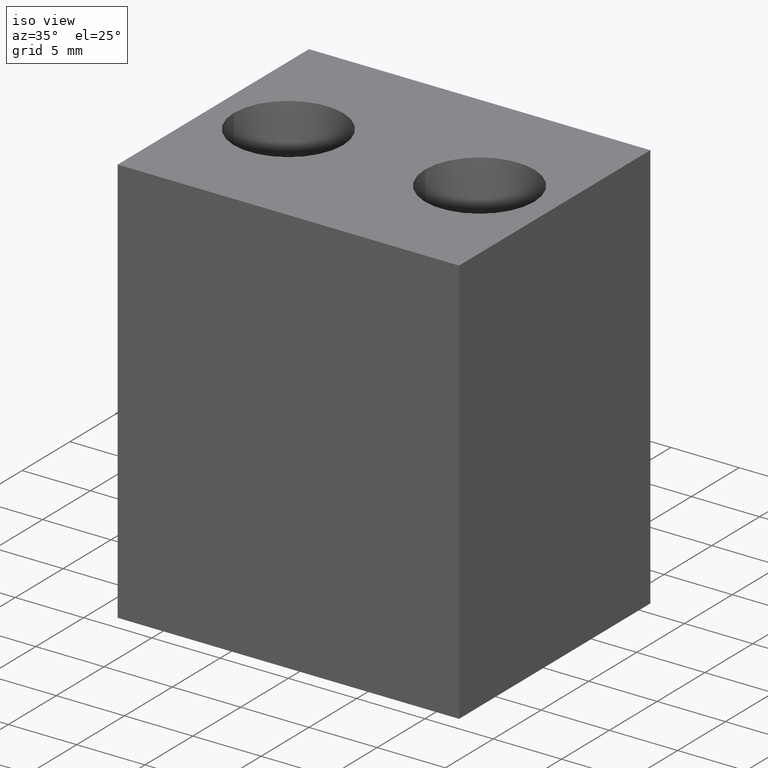
[diagram: clean part render]
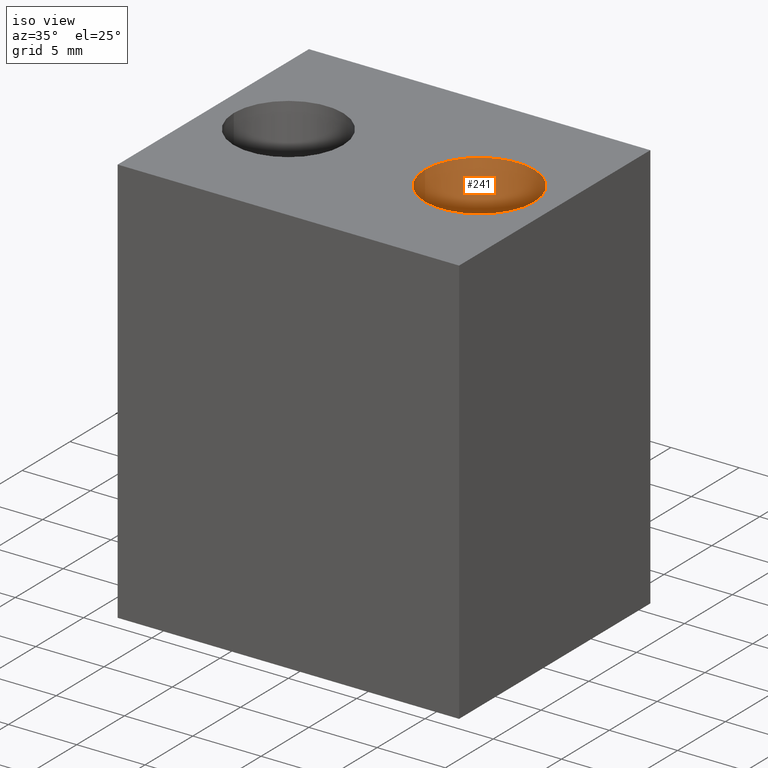
[diagram: same view with one face highlighted and labeled with its STEP entity id]
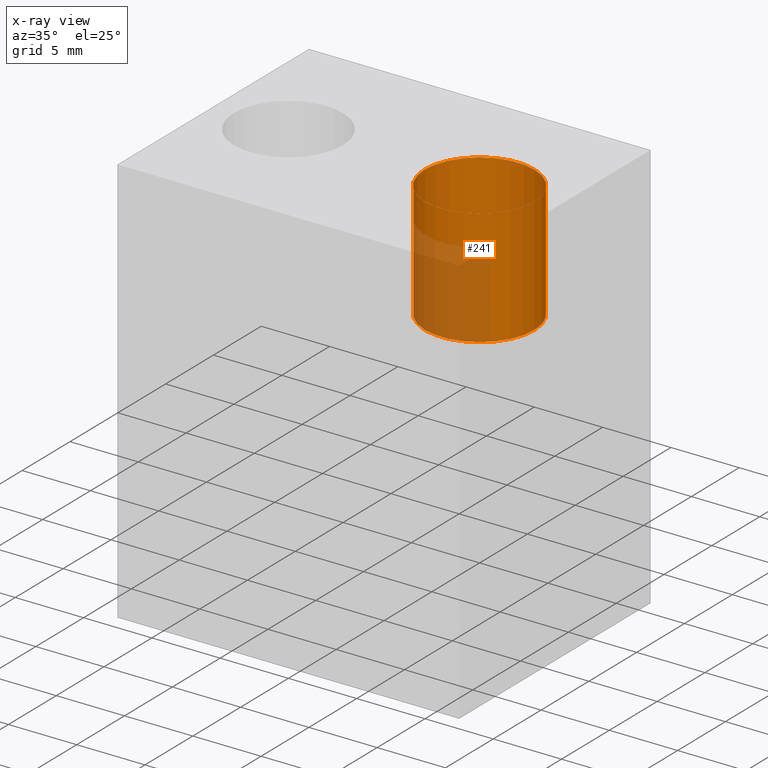
[diagram: x-ray of the same camera — body ghosted, the highlighted face saturated]
A machine part, iso view. The second image highlights one B-rep face of the part: STEP entity #241.
The next image is the same camera in x-ray: the body ghosted, the highlighted face saturated — about 32% of this face is hidden behind the body in this view.
In plain terms, the highlighted cylindrical surface (bore or boss wall) has radius 4 mm, axis along (0, 0, 1).
Its self-contained STEP definition (entity closure, byte-faithful):
#37=FACE_OUTER_BOUND('',#55,.T.);
#55=EDGE_LOOP('',(#183,#184,#185,#186));
#75=LINE('',#403,#93);
#93=VECTOR('',#332,4.);
#115=CIRCLE('',#287,4.);
#116=CIRCLE('',#288,4.);
#127=VERTEX_POINT('',#400);
#128=VERTEX_POINT('',#402);
#149=EDGE_CURVE('',#127,#127,#115,.T.);
#150=EDGE_CURVE('',#127,#128,#75,.T.);
#151=EDGE_CURVE('',#128,#128,#116,.T.);
#183=ORIENTED_EDGE('',*,*,#149,.F.);
#184=ORIENTED_EDGE('',*,*,#150,.T.);
#185=ORIENTED_EDGE('',*,*,#151,.F.);
#186=ORIENTED_EDGE('',*,*,#150,.F.);
#233=CYLINDRICAL_SURFACE('',#286,4.);
#241=ADVANCED_FACE('',(#37),#233,.F.);
#286=AXIS2_PLACEMENT_3D('',#399,#328,#329);
#287=AXIS2_PLACEMENT_3D('',#401,#330,#331);
#288=AXIS2_PLACEMENT_3D('',#404,#333,#334);
#328=DIRECTION('center_axis',(0.,0.,1.));
#329=DIRECTION('ref_axis',(1.,0.,0.));
#330=DIRECTION('center_axis',(0.,0.,-1.));
#331=DIRECTION('ref_axis',(1.,0.,0.));
#332=DIRECTION('',(0.,0.,-1.));
#333=DIRECTION('center_axis',(0.,0.,1.));
#334=DIRECTION('ref_axis',(1.,0.,0.));
#399=CARTESIAN_POINT('Origin',(7.,5.33101755084625E-15,25.75));
#400=CARTESIAN_POINT('',(3.,4.84115883118731E-15,30.));
#401=CARTESIAN_POINT('Origin',(7.,5.33101755084625E-15,30.));
#402=CARTESIAN_POINT('',(3.,4.84115883118731E-15,21.5));
#403=CARTESIAN_POINT('',(3.,4.84115883118731E-15,25.75));
#404=CARTESIAN_POINT('Origin',(7.,5.33101755084625E-15,21.5));